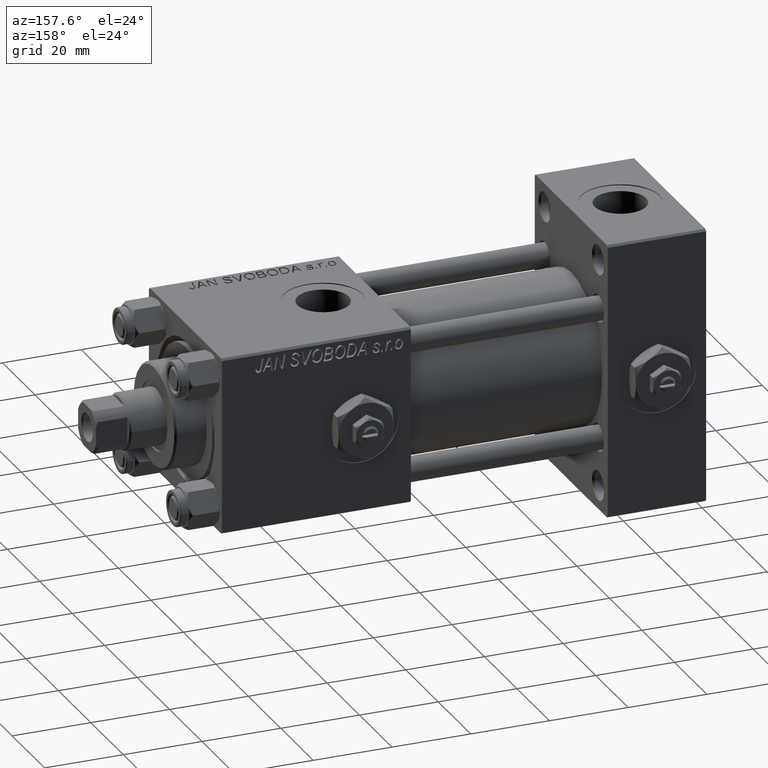
[diagram: clean part render]
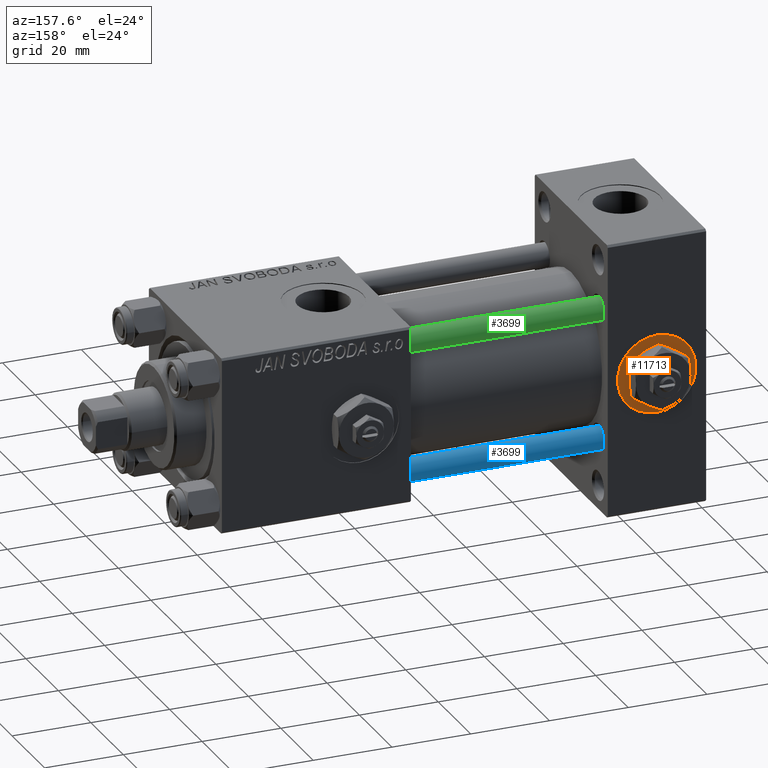
[diagram: same view with three faces highlighted in distinct colors, each labeled with its STEP entity id]
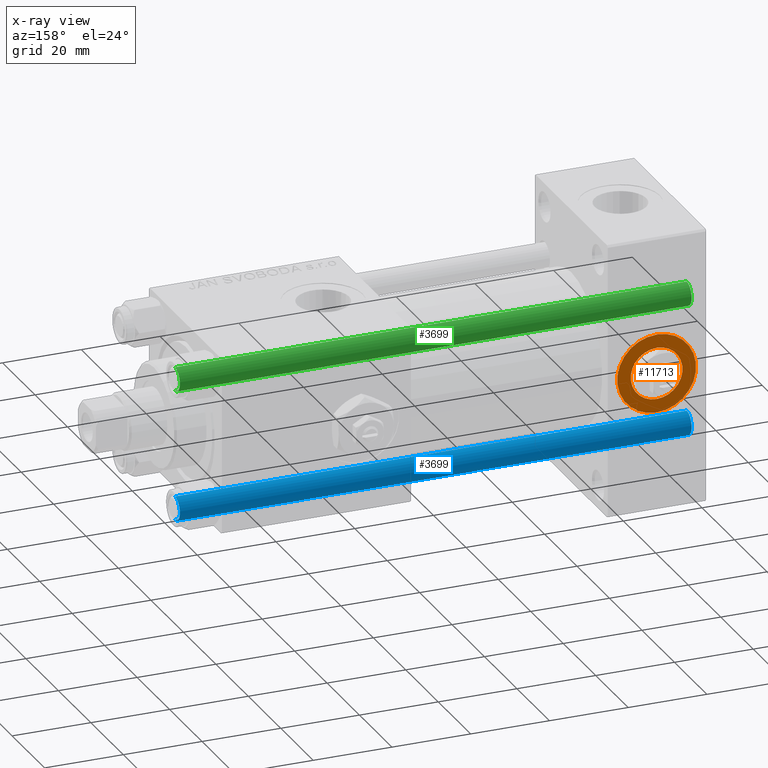
[diagram: x-ray of the same camera — body ghosted, the three highlighted faces saturated]
A machine part, auxiliary view with three faces highlighted in distinct colors.
The next image is the same camera in x-ray (body ghosted, the three faces saturated) — at least one of them is partly hidden behind the body in this view.
Their STEP definitions:

[orange] entity #11713 — the highlighted planar face has unit normal (0, 1, 0).
#571 = EDGE_LOOP ( 'NONE', ( #50552, #15493 ) ) ;
#2748 = CARTESIAN_POINT ( 'NONE',  ( 12.50000000000000000, 22.30000000000000426, 0.000000000000000000 ) ) ;
#3337 = CARTESIAN_POINT ( 'NONE',  ( 12.50000000000000000, 22.30000000000000426, 0.000000000000000000 ) ) ;
#3627 = AXIS2_PLACEMENT_3D ( 'NONE', #21552, #37579, #17600 ) ;
#4463 = CIRCLE ( 'NONE', #48134, 9.999999999999996447 ) ;
#4948 = DIRECTION ( 'NONE',  ( 0.000000000000000000, 0.000000000000000000, 1.000000000000000000 ) ) ;
#5897 = DIRECTION ( 'NONE',  ( 0.000000000000000000, 0.000000000000000000, 1.000000000000000000 ) ) ;
#5974 = CARTESIAN_POINT ( 'NONE',  ( 12.50000000000000000, 22.30000000000000426, 0.000000000000000000 ) ) ;
#9222 = CIRCLE ( 'NONE', #15125, 9.999999999999996447 ) ;
#10447 = CARTESIAN_POINT ( 'NONE',  ( 12.50000000000000000, 22.30000000000000426, 9.999999999999996447 ) ) ;
#10872 = EDGE_CURVE ( 'NONE', #40836, #25405, #33831, .T. ) ;
#11132 = EDGE_CURVE ( 'NONE', #50315, #12281, #4463, .T. ) ;
#11713 = ADVANCED_FACE ( 'NONE', ( #46281, #41535 ), #29179, .T. ) ;
#11720 = DIRECTION ( 'NONE',  ( 0.000000000000000000, 0.000000000000000000, 1.000000000000000000 ) ) ;
#12281 = VERTEX_POINT ( 'NONE', #16450 ) ;
#15125 = AXIS2_PLACEMENT_3D ( 'NONE', #2748, #46398, #5897 ) ;
#15493 = ORIENTED_EDGE ( 'NONE', *, *, #47534, .F. ) ;
#16450 = CARTESIAN_POINT ( 'NONE',  ( 12.50000000000000178, 22.30000000000000426, -9.999999999999996447 ) ) ;
#17600 = DIRECTION ( 'NONE',  ( 0.000000000000000000, -0.000000000000000000, 1.000000000000000000 ) ) ;
#19931 = ORIENTED_EDGE ( 'NONE', *, *, #44683, .T. ) ;
#20516 = CARTESIAN_POINT ( 'NONE',  ( 12.50000000000000000, 22.30000000000000426, 0.000000000000000000 ) ) ;
#21313 = CARTESIAN_POINT ( 'NONE',  ( 12.50000000000000000, 22.30000000000000426, 6.579999999999998295 ) ) ;
#21552 = CARTESIAN_POINT ( 'NONE',  ( 12.50000000000000000, 22.30000000000000426, 0.000000000000000000 ) ) ;
#24717 = DIRECTION ( 'NONE',  ( 0.000000000000000000, 1.000000000000000000, 0.000000000000000000 ) ) ;
#25405 = VERTEX_POINT ( 'NONE', #33824 ) ;
#25416 = AXIS2_PLACEMENT_3D ( 'NONE', #5974, #29111, #4948 ) ;
#29111 = DIRECTION ( 'NONE',  ( 0.000000000000000000, 1.000000000000000000, 0.000000000000000000 ) ) ;
#29179 = PLANE ( 'NONE',  #3627 ) ;
#33824 = CARTESIAN_POINT ( 'NONE',  ( 12.50000000000000000, 22.30000000000000426, -6.579999999999998295 ) ) ;
#33831 = CIRCLE ( 'NONE', #25416, 6.579999999999998295 ) ;
#37579 = DIRECTION ( 'NONE',  ( 0.000000000000000000, 1.000000000000000000, 0.000000000000000000 ) ) ;
#40270 = CIRCLE ( 'NONE', #42004, 6.579999999999998295 ) ;
#40836 = VERTEX_POINT ( 'NONE', #21313 ) ;
#41535 = FACE_OUTER_BOUND ( 'NONE', #43998, .T. ) ;
#42004 = AXIS2_PLACEMENT_3D ( 'NONE', #20516, #24717, #49677 ) ;
#43998 = EDGE_LOOP ( 'NONE', ( #47555, #19931 ) ) ;
#44683 = EDGE_CURVE ( 'NONE', #12281, #50315, #9222, .T. ) ;
#46281 = FACE_BOUND ( 'NONE', #571, .T. ) ;
#46398 = DIRECTION ( 'NONE',  ( 0.000000000000000000, 1.000000000000000000, 0.000000000000000000 ) ) ;
#47534 = EDGE_CURVE ( 'NONE', #25405, #40836, #40270, .T. ) ;
#47555 = ORIENTED_EDGE ( 'NONE', *, *, #11132, .T. ) ;
#48134 = AXIS2_PLACEMENT_3D ( 'NONE', #3337, #51429, #11720 ) ;
#49677 = DIRECTION ( 'NONE',  ( 0.000000000000000000, 0.000000000000000000, 1.000000000000000000 ) ) ;
#50315 = VERTEX_POINT ( 'NONE', #10447 ) ;
#50552 = ORIENTED_EDGE ( 'NONE', *, *, #10872, .F. ) ;
#51429 = DIRECTION ( 'NONE',  ( 0.000000000000000000, 1.000000000000000000, 0.000000000000000000 ) ) ;

[blue] entity #3699 — the highlighted cylindrical surface (edge-blend (fillet) strip) has radius 3 mm, axis along (-1, 0, 0).
#493 = EDGE_CURVE ( 'NONE', #26367, #43692, #12054, .T. ) ;
#647 = DIRECTION ( 'NONE',  ( -1.000000000000000000, 0.000000000000000000, 0.000000000000000000 ) ) ;
#1274 = CARTESIAN_POINT ( 'NONE',  ( 0.000000000000000000, 0.000000000000000000, 130.5000000000000284 ) ) ;
#2282 = CARTESIAN_POINT ( 'NONE',  ( 0.000000000000000000, 0.000000000000000000, 0.5000000000000281997 ) ) ;
#3699 = ADVANCED_FACE ( 'NONE', ( #36658 ), #12217, .T. ) ;
#3836 = CARTESIAN_POINT ( 'NONE',  ( -3.000000000000000444, 0.000000000000000000, 130.5000000000000284 ) ) ;
#5172 = VERTEX_POINT ( 'NONE', #30023 ) ;
#5442 = ORIENTED_EDGE ( 'NONE', *, *, #46879, .T. ) ;
#5960 = DIRECTION ( 'NONE',  ( -0.000000000000000000, -0.000000000000000000, 1.000000000000000000 ) ) ;
#7012 = DIRECTION ( 'NONE',  ( -0.000000000000000000, -0.000000000000000000, -1.000000000000000000 ) ) ;
#7853 = CARTESIAN_POINT ( 'NONE',  ( -3.000000000000000444, 0.000000000000000000, 131.0000000000000000 ) ) ;
#11068 = EDGE_CURVE ( 'NONE', #5172, #37760, #46729, .T. ) ;
#12054 = LINE ( 'NONE', #7853, #23405 ) ;
#12134 = CIRCLE ( 'NONE', #28910, 3.000000000000000444 ) ;
#12217 = CYLINDRICAL_SURFACE ( 'NONE', #35263, 3.000000000000000444 ) ;
#12405 = CARTESIAN_POINT ( 'NONE',  ( -3.000000000000000444, 0.000000000000000000, 0.5000000000000281997 ) ) ;
#12528 = ORIENTED_EDGE ( 'NONE', *, *, #11068, .F. ) ;
#14626 = EDGE_CURVE ( 'NONE', #5172, #26367, #12134, .T. ) ;
#17300 = DIRECTION ( 'NONE',  ( 0.000000000000000000, 0.000000000000000000, -1.000000000000000000 ) ) ;
#20437 = ORIENTED_EDGE ( 'NONE', *, *, #14626, .T. ) ;
#21157 = DIRECTION ( 'NONE',  ( -0.000000000000000000, -0.000000000000000000, -1.000000000000000000 ) ) ;
#23405 = VECTOR ( 'NONE', #44395, 1000.000000000000000 ) ;
#25902 = CARTESIAN_POINT ( 'NONE',  ( 3.000000000000000444, 3.673940397442060361E-16, 0.5000000000000281997 ) ) ;
#26000 = AXIS2_PLACEMENT_3D ( 'NONE', #2282, #5960, #34087 ) ;
#26367 = VERTEX_POINT ( 'NONE', #3836 ) ;
#28804 = VECTOR ( 'NONE', #7012, 1000.000000000000000 ) ;
#28910 = AXIS2_PLACEMENT_3D ( 'NONE', #1274, #17300, #41500 ) ;
#30023 = CARTESIAN_POINT ( 'NONE',  ( 3.000000000000000444, 3.673940397442060361E-16, 130.5000000000000284 ) ) ;
#30942 = CARTESIAN_POINT ( 'NONE',  ( 3.000000000000000444, 3.673940397442060361E-16, 131.0000000000000000 ) ) ;
#32455 = CARTESIAN_POINT ( 'NONE',  ( 0.000000000000000000, 0.000000000000000000, 131.0000000000000000 ) ) ;
#34052 = ORIENTED_EDGE ( 'NONE', *, *, #493, .T. ) ;
#34087 = DIRECTION ( 'NONE',  ( 1.000000000000000000, 0.000000000000000000, 0.000000000000000000 ) ) ;
#35263 = AXIS2_PLACEMENT_3D ( 'NONE', #32455, #21157, #647 ) ;
#35684 = EDGE_LOOP ( 'NONE', ( #12528, #20437, #34052, #5442 ) ) ;
#36658 = FACE_OUTER_BOUND ( 'NONE', #35684, .T. ) ;
#37760 = VERTEX_POINT ( 'NONE', #25902 ) ;
#41500 = DIRECTION ( 'NONE',  ( 1.000000000000000000, 0.000000000000000000, 0.000000000000000000 ) ) ;
#43692 = VERTEX_POINT ( 'NONE', #12405 ) ;
#44395 = DIRECTION ( 'NONE',  ( -0.000000000000000000, -0.000000000000000000, -1.000000000000000000 ) ) ;
#46729 = LINE ( 'NONE', #30942, #28804 ) ;
#46879 = EDGE_CURVE ( 'NONE', #43692, #37760, #51193, .T. ) ;
#51193 = CIRCLE ( 'NONE', #26000, 3.000000000000000444 ) ;

[green] entity #3699 — the highlighted cylindrical surface (edge-blend (fillet) strip) has radius 3 mm, axis along (1, 0, 0).
#493 = EDGE_CURVE ( 'NONE', #26367, #43692, #12054, .T. ) ;
#647 = DIRECTION ( 'NONE',  ( -1.000000000000000000, 0.000000000000000000, 0.000000000000000000 ) ) ;
#1274 = CARTESIAN_POINT ( 'NONE',  ( 0.000000000000000000, 0.000000000000000000, 130.5000000000000284 ) ) ;
#2282 = CARTESIAN_POINT ( 'NONE',  ( 0.000000000000000000, 0.000000000000000000, 0.5000000000000281997 ) ) ;
#3699 = ADVANCED_FACE ( 'NONE', ( #36658 ), #12217, .T. ) ;
#3836 = CARTESIAN_POINT ( 'NONE',  ( -3.000000000000000444, 0.000000000000000000, 130.5000000000000284 ) ) ;
#5172 = VERTEX_POINT ( 'NONE', #30023 ) ;
#5442 = ORIENTED_EDGE ( 'NONE', *, *, #46879, .T. ) ;
#5960 = DIRECTION ( 'NONE',  ( -0.000000000000000000, -0.000000000000000000, 1.000000000000000000 ) ) ;
#7012 = DIRECTION ( 'NONE',  ( -0.000000000000000000, -0.000000000000000000, -1.000000000000000000 ) ) ;
#7853 = CARTESIAN_POINT ( 'NONE',  ( -3.000000000000000444, 0.000000000000000000, 131.0000000000000000 ) ) ;
#11068 = EDGE_CURVE ( 'NONE', #5172, #37760, #46729, .T. ) ;
#12054 = LINE ( 'NONE', #7853, #23405 ) ;
#12134 = CIRCLE ( 'NONE', #28910, 3.000000000000000444 ) ;
#12217 = CYLINDRICAL_SURFACE ( 'NONE', #35263, 3.000000000000000444 ) ;
#12405 = CARTESIAN_POINT ( 'NONE',  ( -3.000000000000000444, 0.000000000000000000, 0.5000000000000281997 ) ) ;
#12528 = ORIENTED_EDGE ( 'NONE', *, *, #11068, .F. ) ;
#14626 = EDGE_CURVE ( 'NONE', #5172, #26367, #12134, .T. ) ;
#17300 = DIRECTION ( 'NONE',  ( 0.000000000000000000, 0.000000000000000000, -1.000000000000000000 ) ) ;
#20437 = ORIENTED_EDGE ( 'NONE', *, *, #14626, .T. ) ;
#21157 = DIRECTION ( 'NONE',  ( -0.000000000000000000, -0.000000000000000000, -1.000000000000000000 ) ) ;
#23405 = VECTOR ( 'NONE', #44395, 1000.000000000000000 ) ;
#25902 = CARTESIAN_POINT ( 'NONE',  ( 3.000000000000000444, 3.673940397442060361E-16, 0.5000000000000281997 ) ) ;
#26000 = AXIS2_PLACEMENT_3D ( 'NONE', #2282, #5960, #34087 ) ;
#26367 = VERTEX_POINT ( 'NONE', #3836 ) ;
#28804 = VECTOR ( 'NONE', #7012, 1000.000000000000000 ) ;
#28910 = AXIS2_PLACEMENT_3D ( 'NONE', #1274, #17300, #41500 ) ;
#30023 = CARTESIAN_POINT ( 'NONE',  ( 3.000000000000000444, 3.673940397442060361E-16, 130.5000000000000284 ) ) ;
#30942 = CARTESIAN_POINT ( 'NONE',  ( 3.000000000000000444, 3.673940397442060361E-16, 131.0000000000000000 ) ) ;
#32455 = CARTESIAN_POINT ( 'NONE',  ( 0.000000000000000000, 0.000000000000000000, 131.0000000000000000 ) ) ;
#34052 = ORIENTED_EDGE ( 'NONE', *, *, #493, .T. ) ;
#34087 = DIRECTION ( 'NONE',  ( 1.000000000000000000, 0.000000000000000000, 0.000000000000000000 ) ) ;
#35263 = AXIS2_PLACEMENT_3D ( 'NONE', #32455, #21157, #647 ) ;
#35684 = EDGE_LOOP ( 'NONE', ( #12528, #20437, #34052, #5442 ) ) ;
#36658 = FACE_OUTER_BOUND ( 'NONE', #35684, .T. ) ;
#37760 = VERTEX_POINT ( 'NONE', #25902 ) ;
#41500 = DIRECTION ( 'NONE',  ( 1.000000000000000000, 0.000000000000000000, 0.000000000000000000 ) ) ;
#43692 = VERTEX_POINT ( 'NONE', #12405 ) ;
#44395 = DIRECTION ( 'NONE',  ( -0.000000000000000000, -0.000000000000000000, -1.000000000000000000 ) ) ;
#46729 = LINE ( 'NONE', #30942, #28804 ) ;
#46879 = EDGE_CURVE ( 'NONE', #43692, #37760, #51193, .T. ) ;
#51193 = CIRCLE ( 'NONE', #26000, 3.000000000000000444 ) ;